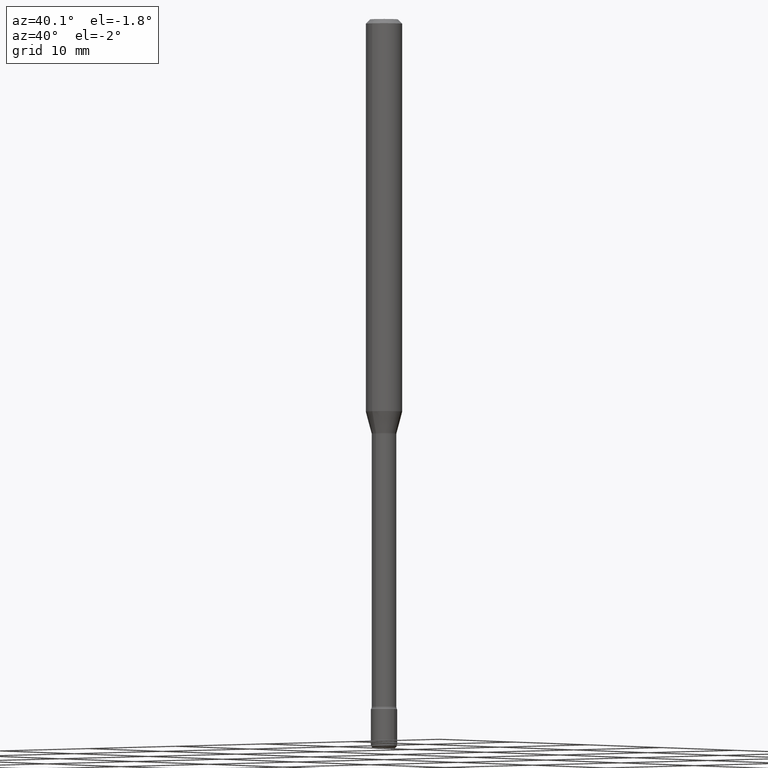
[diagram: clean part render]
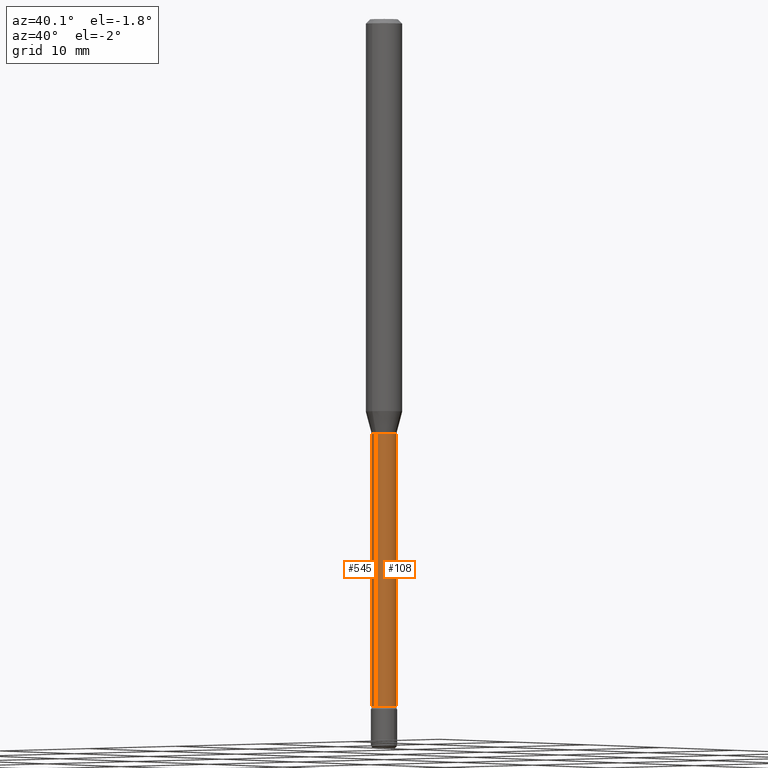
[diagram: same view with one multi-face feature highlighted, each face labeled with its STEP entity id]
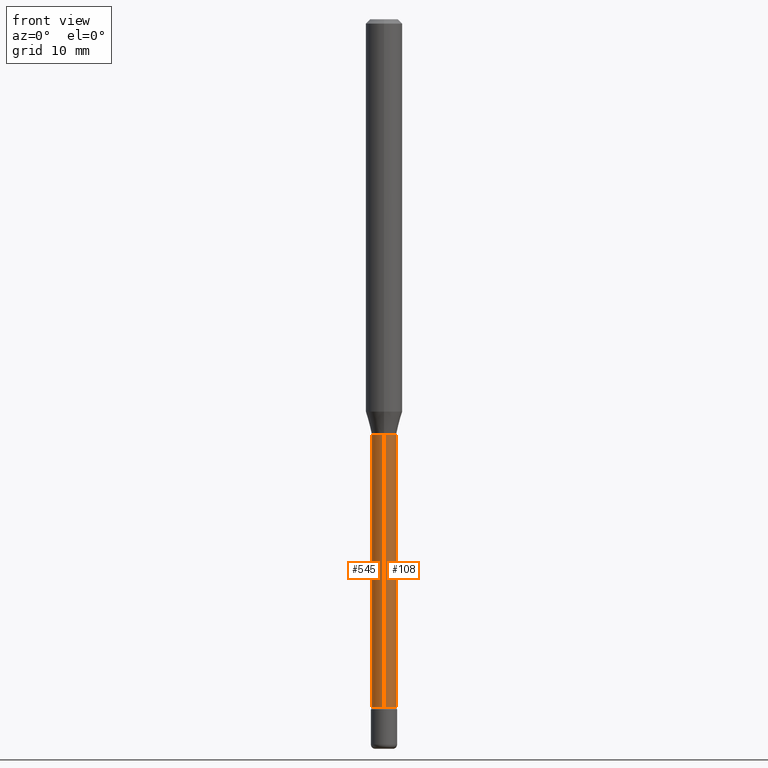
[diagram: same view with one multi-face feature highlighted, each face labeled with its STEP entity id]
A machine part, auxiliary view. The highlighted faces form ONE feature: a constant-radius fillet chain: 2 tangent blend faces with common blend radius 1.0744 mm. The faces share edges in the B-rep.
A second angle (front view) of the same feature is appended — it is thin or edge-on in the first view.
Their STEP definitions:
[1] entity #108 (Cylinder):
#11 = CYLINDRICAL_SURFACE ( 'NONE', #521, 0.04229999999999999732 ) ;
#13 = LINE ( 'NONE', #194, #84 ) ;
#28 = EDGE_CURVE ( 'NONE', #349, #506, #13, .T. ) ;
#75 = CIRCLE ( 'NONE', #159, 0.04229999999999999732 ) ;
#84 = VECTOR ( 'NONE', #362, 39.37007874015748143 ) ;
#103 = CARTESIAN_POINT ( 'NONE',  ( 3.005595772265801930E-16, 0.04229999999999504989, -1.421974787463811563 ) ) ;
#108 = ADVANCED_FACE ( 'NONE', ( #234 ), #11, .T. ) ;
#119 = DIRECTION ( 'NONE',  ( -6.982962677686266711E-15, -1.000000000000000000, 3.491562882129241049E-15 ) ) ;
#125 = ORIENTED_EDGE ( 'NONE', *, *, #439, .F. ) ;
#136 = ORIENTED_EDGE ( 'NONE', *, *, #28, .T. ) ;
#137 = CARTESIAN_POINT ( 'NONE',  ( 3.101519041593414751E-16, 0.04229999999999176780, -2.356414547187247965 ) ) ;
#139 = LINE ( 'NONE', #239, #494 ) ;
#159 = AXIS2_PLACEMENT_3D ( 'NONE', #172, #483, #348 ) ;
#172 = CARTESIAN_POINT ( 'NONE',  ( 5.762404092109162712E-29, -8.227569567868378496E-15, -2.356414547187247521 ) ) ;
#187 = CARTESIAN_POINT ( 'NONE',  ( -1.169113584055446105E-44, 1.669184350826100908E-30, 4.780733988912460139E-16 ) ) ;
#191 = DIRECTION ( 'NONE',  ( -2.445411864812793917E-29, 3.491562882129241838E-15, 1.000000000000000000 ) ) ;
#194 = CARTESIAN_POINT ( 'NONE',  ( 3.005595772265223103E-16, 0.04229999999999999732, 3.303802889771791745E-16 ) ) ;
#215 = DIRECTION ( 'NONE',  ( -2.445411864812793917E-29, 3.491562882129241838E-15, 1.000000000000000000 ) ) ;
#234 = FACE_OUTER_BOUND ( 'NONE', #533, .T. ) ;
#239 = CARTESIAN_POINT ( 'NONE',  ( -2.953793212661290535E-16, -0.04229999999999999732, 6.257665088053130012E-16 ) ) ;
#268 = EDGE_CURVE ( 'NONE', #312, #506, #410, .T. ) ;
#279 = ORIENTED_EDGE ( 'NONE', *, *, #268, .F. ) ;
#286 = VERTEX_POINT ( 'NONE', #570 ) ;
#312 = VERTEX_POINT ( 'NONE', #353 ) ;
#328 = DIRECTION ( 'NONE',  ( -2.445411864812793917E-29, 3.491562882129241838E-15, 1.000000000000000000 ) ) ;
#339 = EDGE_CURVE ( 'NONE', #286, #349, #75, .T. ) ;
#348 = DIRECTION ( 'NONE',  ( -6.982962677686266711E-15, -1.000000000000000000, 6.458269488567998169E-15 ) ) ;
#349 = VERTEX_POINT ( 'NONE', #137 ) ;
#353 = CARTESIAN_POINT ( 'NONE',  ( -2.953793212660943436E-16, -0.04230000000000497945, -1.421974787463810896 ) ) ;
#362 = DIRECTION ( 'NONE',  ( -2.445411864812793917E-29, 3.491562882129241838E-15, 1.000000000000000000 ) ) ;
#397 = CARTESIAN_POINT ( 'NONE',  ( 3.477314016728655540E-29, -4.964914387232260657E-15, -1.421974787463811118 ) ) ;
#399 = DIRECTION ( 'NONE',  ( -6.982962677686265133E-15, -1.000000000000000000, 6.458269488567996591E-15 ) ) ;
#410 = CIRCLE ( 'NONE', #505, 0.04230000000000001120 ) ;
#439 = EDGE_CURVE ( 'NONE', #286, #312, #139, .T. ) ;
#483 = DIRECTION ( 'NONE',  ( -2.445411864812793917E-29, 3.491562882129241838E-15, 1.000000000000000000 ) ) ;
#494 = VECTOR ( 'NONE', #191, 39.37007874015748143 ) ;
#505 = AXIS2_PLACEMENT_3D ( 'NONE', #397, #215, #399 ) ;
#506 = VERTEX_POINT ( 'NONE', #103 ) ;
#521 = AXIS2_PLACEMENT_3D ( 'NONE', #187, #328, #119 ) ;
#533 = EDGE_LOOP ( 'NONE', ( #541, #136, #279, #125 ) ) ;
#541 = ORIENTED_EDGE ( 'NONE', *, *, #339, .T. ) ;
#570 = CARTESIAN_POINT ( 'NONE',  ( -2.953793212660714173E-16, -0.04230000000000822685, -2.356414547187247077 ) ) ;
[2] entity #545 (Cylinder):
#13 = LINE ( 'NONE', #194, #84 ) ;
#28 = EDGE_CURVE ( 'NONE', #349, #506, #13, .T. ) ;
#51 = CYLINDRICAL_SURFACE ( 'NONE', #255, 0.04229999999999999732 ) ;
#84 = VECTOR ( 'NONE', #362, 39.37007874015748143 ) ;
#103 = CARTESIAN_POINT ( 'NONE',  ( 3.005595772265801930E-16, 0.04229999999999504989, -1.421974787463811563 ) ) ;
#124 = DIRECTION ( 'NONE',  ( -2.445411864812793917E-29, 3.491562882129241838E-15, 1.000000000000000000 ) ) ;
#137 = CARTESIAN_POINT ( 'NONE',  ( 3.101519041593414751E-16, 0.04229999999999176780, -2.356414547187247965 ) ) ;
#139 = LINE ( 'NONE', #239, #494 ) ;
#151 = DIRECTION ( 'NONE',  ( -2.445411864812793917E-29, 3.491562882129241838E-15, 1.000000000000000000 ) ) ;
#179 = ORIENTED_EDGE ( 'NONE', *, *, #28, .F. ) ;
#180 = AXIS2_PLACEMENT_3D ( 'NONE', #245, #151, #419 ) ;
#191 = DIRECTION ( 'NONE',  ( -2.445411864812793917E-29, 3.491562882129241838E-15, 1.000000000000000000 ) ) ;
#193 = EDGE_CURVE ( 'NONE', #349, #286, #393, .T. ) ;
#194 = CARTESIAN_POINT ( 'NONE',  ( 3.005595772265223103E-16, 0.04229999999999999732, 3.303802889771791745E-16 ) ) ;
#233 = DIRECTION ( 'NONE',  ( -6.982962677686266711E-15, -1.000000000000000000, 3.491562882129241049E-15 ) ) ;
#239 = CARTESIAN_POINT ( 'NONE',  ( -2.953793212661290535E-16, -0.04229999999999999732, 6.257665088053130012E-16 ) ) ;
#245 = CARTESIAN_POINT ( 'NONE',  ( 5.762404092109162712E-29, -8.227569567868378496E-15, -2.356414547187247521 ) ) ;
#255 = AXIS2_PLACEMENT_3D ( 'NONE', #368, #444, #233 ) ;
#278 = FACE_OUTER_BOUND ( 'NONE', #524, .T. ) ;
#286 = VERTEX_POINT ( 'NONE', #570 ) ;
#312 = VERTEX_POINT ( 'NONE', #353 ) ;
#349 = VERTEX_POINT ( 'NONE', #137 ) ;
#353 = CARTESIAN_POINT ( 'NONE',  ( -2.953793212660943436E-16, -0.04230000000000497945, -1.421974787463810896 ) ) ;
#362 = DIRECTION ( 'NONE',  ( -2.445411864812793917E-29, 3.491562882129241838E-15, 1.000000000000000000 ) ) ;
#368 = CARTESIAN_POINT ( 'NONE',  ( -1.169113584055446105E-44, 1.669184350826100908E-30, 4.780733988912460139E-16 ) ) ;
#371 = DIRECTION ( 'NONE',  ( -6.982962677686265133E-15, -1.000000000000000000, 6.458269488567996591E-15 ) ) ;
#389 = ORIENTED_EDGE ( 'NONE', *, *, #439, .T. ) ;
#392 = EDGE_CURVE ( 'NONE', #506, #312, #416, .T. ) ;
#393 = CIRCLE ( 'NONE', #180, 0.04229999999999999732 ) ;
#416 = CIRCLE ( 'NONE', #531, 0.04230000000000001120 ) ;
#419 = DIRECTION ( 'NONE',  ( -6.982962677686266711E-15, -1.000000000000000000, 6.458269488567998169E-15 ) ) ;
#439 = EDGE_CURVE ( 'NONE', #286, #312, #139, .T. ) ;
#444 = DIRECTION ( 'NONE',  ( -2.445411864812793917E-29, 3.491562882129241838E-15, 1.000000000000000000 ) ) ;
#489 = ORIENTED_EDGE ( 'NONE', *, *, #193, .T. ) ;
#494 = VECTOR ( 'NONE', #191, 39.37007874015748143 ) ;
#506 = VERTEX_POINT ( 'NONE', #103 ) ;
#523 = CARTESIAN_POINT ( 'NONE',  ( 3.477314016728655540E-29, -4.964914387232260657E-15, -1.421974787463811118 ) ) ;
#524 = EDGE_LOOP ( 'NONE', ( #179, #489, #389, #559 ) ) ;
#531 = AXIS2_PLACEMENT_3D ( 'NONE', #523, #124, #371 ) ;
#545 = ADVANCED_FACE ( 'NONE', ( #278 ), #51, .T. ) ;
#559 = ORIENTED_EDGE ( 'NONE', *, *, #392, .F. ) ;
#570 = CARTESIAN_POINT ( 'NONE',  ( -2.953793212660714173E-16, -0.04230000000000822685, -2.356414547187247077 ) ) ;